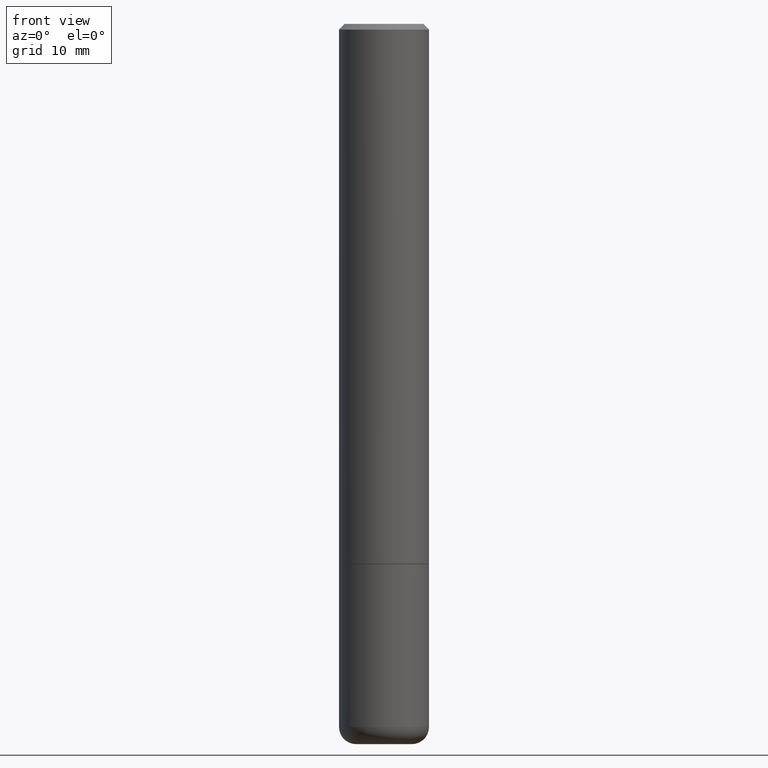
[diagram: clean part render]
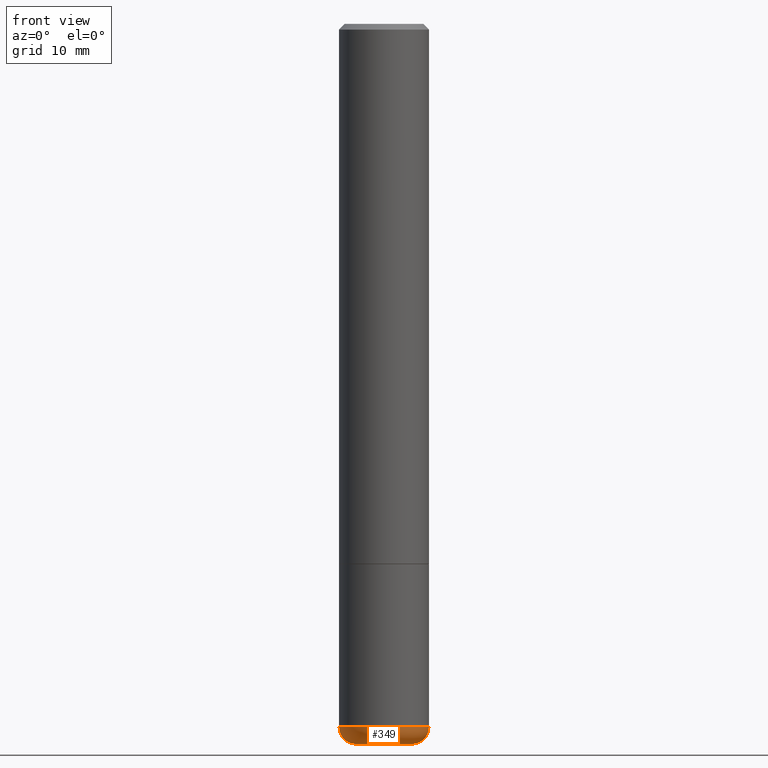
[diagram: same view with one face highlighted and labeled with its STEP entity id]
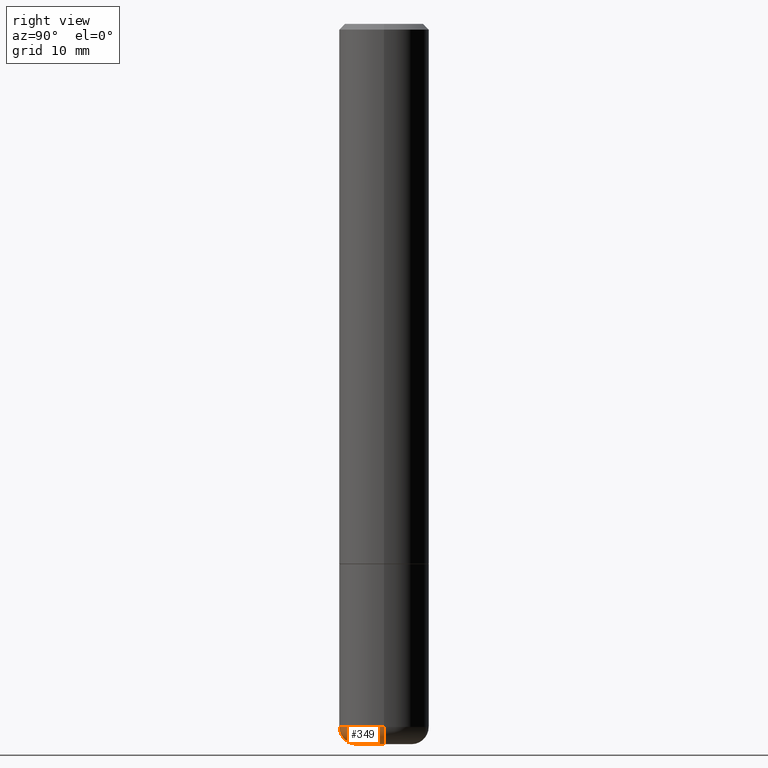
[diagram: same view with one face highlighted and labeled with its STEP entity id]
A machine part, front view. The second image highlights one B-rep face of the part: STEP entity #349.
A second angle (right view) of the same face is appended — the face is thin or edge-on in the first view.
In plain terms, the highlighted toroidal blend (fillet) surface has major radius 2.4447 mm and minor (blend) radius 1.524 mm.
Its self-contained STEP definition (entity closure, byte-faithful):
#3 = DIRECTION ( 'NONE',  ( -1.000000000000000000, 7.105427357600997914E-15, 0.000000000000000000 ) ) ;
#17 = ORIENTED_EDGE ( 'NONE', *, *, #284, .F. ) ;
#25 = CARTESIAN_POINT ( 'NONE',  ( -0.09625000000000000222, -7.726898703045442122E-15, -2.500000000000000444 ) ) ;
#35 = DIRECTION ( 'NONE',  ( -2.445468806185136597E-29, 3.491481338843145583E-15, 1.000000000000000000 ) ) ;
#36 = VERTEX_POINT ( 'NONE', #323 ) ;
#55 = AXIS2_PLACEMENT_3D ( 'NONE', #415, #254, #3 ) ;
#59 = CIRCLE ( 'NONE', #114, 0.09625000000000000222 ) ;
#87 = ORIENTED_EDGE ( 'NONE', *, *, #277, .T. ) ;
#114 = AXIS2_PLACEMENT_3D ( 'NONE', #314, #35, #285 ) ;
#116 = CIRCLE ( 'NONE', #118, 0.06000000000000021289 ) ;
#118 = AXIS2_PLACEMENT_3D ( 'NONE', #256, #353, #351 ) ;
#128 = CARTESIAN_POINT ( 'NONE',  ( -0.1562500000000001110, -7.408991442152118508E-15, -2.440000000000000391 ) ) ;
#176 = ORIENTED_EDGE ( 'NONE', *, *, #311, .T. ) ;
#180 = CARTESIAN_POINT ( 'NONE',  ( 0.1562500000000001110, -9.610302385165753433E-15, -2.440000000000000391 ) ) ;
#182 = DIRECTION ( 'NONE',  ( -2.445468806185136597E-29, 3.491481338843145583E-15, 1.000000000000000000 ) ) ;
#188 = CARTESIAN_POINT ( 'NONE',  ( 5.966943887091733341E-29, -8.519214466777275048E-15, -2.440000000000000391 ) ) ;
#218 = EDGE_CURVE ( 'NONE', #368, #375, #228, .T. ) ;
#228 = CIRCLE ( 'NONE', #370, 0.1562500000000000000 ) ;
#245 = DIRECTION ( 'NONE',  ( 1.000000000000000000, -6.982962677686262766E-15, 0.000000000000000000 ) ) ;
#254 = DIRECTION ( 'NONE',  ( 7.105427357601001859E-15, 1.000000000000000000, -3.491481338843145583E-15 ) ) ;
#256 = CARTESIAN_POINT ( 'NONE',  ( 0.09625000000000000222, -9.191324624504578377E-15, -2.440000000000000391 ) ) ;
#275 = CARTESIAN_POINT ( 'NONE',  ( 5.966943887091733341E-29, -8.519214466777275048E-15, -2.440000000000000391 ) ) ;
#277 = EDGE_CURVE ( 'NONE', #416, #36, #59, .T. ) ;
#284 = EDGE_CURVE ( 'NONE', #416, #368, #327, .T. ) ;
#285 = DIRECTION ( 'NONE',  ( 1.000000000000000000, -6.982962677686269077E-15, 0.000000000000000000 ) ) ;
#311 = EDGE_CURVE ( 'NONE', #36, #375, #116, .T. ) ;
#312 = FACE_OUTER_BOUND ( 'NONE', #359, .T. ) ;
#314 = CARTESIAN_POINT ( 'NONE',  ( 6.113672015462842613E-29, -8.728703347107866520E-15, -2.500000000000000444 ) ) ;
#323 = CARTESIAN_POINT ( 'NONE',  ( 0.09625000000000000222, -9.400813504835169849E-15, -2.500000000000000444 ) ) ;
#325 = TOROIDAL_SURFACE ( 'NONE', #383, 0.09625000000000000222, 0.06000000000000023370 ) ;
#327 = CIRCLE ( 'NONE', #55, 0.06000000000000021289 ) ;
#342 = DIRECTION ( 'NONE',  ( -2.445468806185136597E-29, 3.491481338843145583E-15, 1.000000000000000000 ) ) ;
#345 = ORIENTED_EDGE ( 'NONE', *, *, #218, .F. ) ;
#349 = ADVANCED_FACE ( 'NONE', ( #312 ), #325, .T. ) ;
#351 = DIRECTION ( 'NONE',  ( 1.000000000000000000, -6.982962677686275388E-15, 0.000000000000000000 ) ) ;
#353 = DIRECTION ( 'NONE',  ( -6.982962677686266711E-15, -1.000000000000000000, 3.491481338843145583E-15 ) ) ;
#359 = EDGE_LOOP ( 'NONE', ( #17, #87, #176, #345 ) ) ;
#368 = VERTEX_POINT ( 'NONE', #128 ) ;
#370 = AXIS2_PLACEMENT_3D ( 'NONE', #275, #342, #245 ) ;
#375 = VERTEX_POINT ( 'NONE', #180 ) ;
#383 = AXIS2_PLACEMENT_3D ( 'NONE', #188, #182, #403 ) ;
#403 = DIRECTION ( 'NONE',  ( 1.000000000000000000, -6.982962677686265922E-15, 4.883557194083112340E-29 ) ) ;
#415 = CARTESIAN_POINT ( 'NONE',  ( -0.09625000000000000222, -7.835317083608178998E-15, -2.440000000000000391 ) ) ;
#416 = VERTEX_POINT ( 'NONE', #25 ) ;